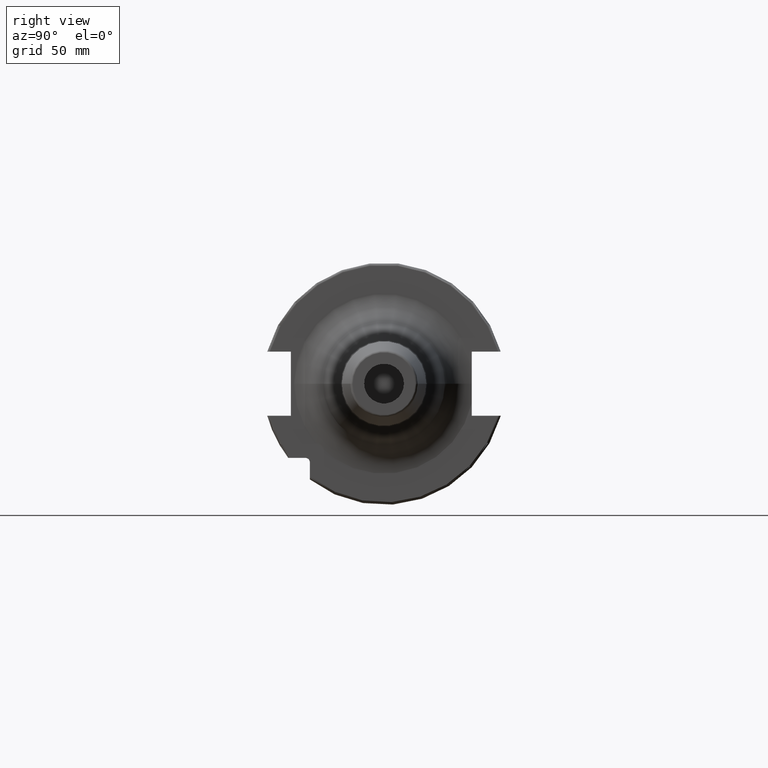
[diagram: clean part render]
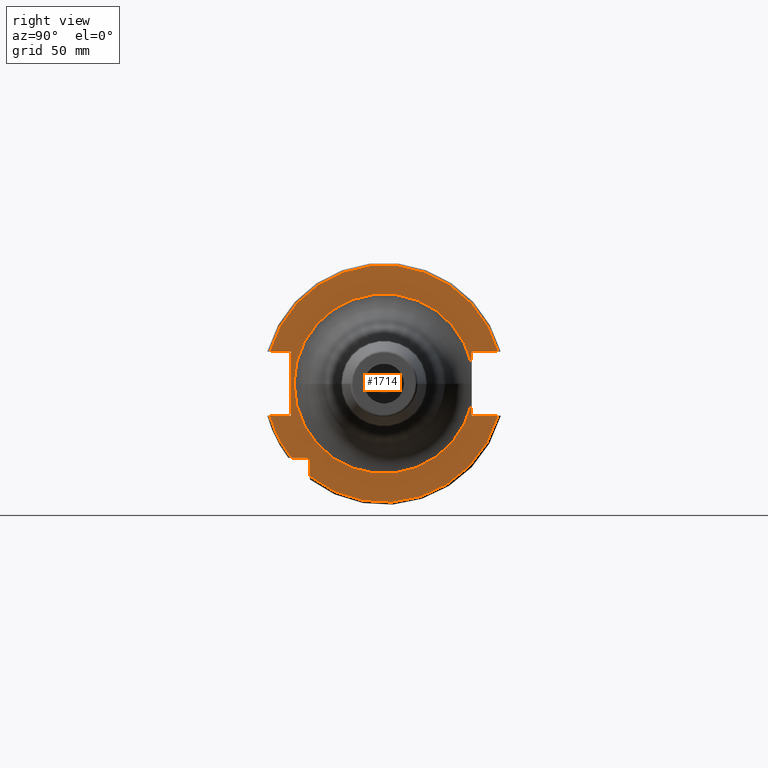
[diagram: same view with one face highlighted and labeled with its STEP entity id]
A machine part, right view. The second image highlights one B-rep face of the part: STEP entity #1714.
In plain terms, the highlighted planar face has unit normal (1, 0, 0).
Its self-contained STEP definition (entity closure, byte-faithful):
#126=CARTESIAN_POINT('',(1.905E1,0.E0,0.E0));
#127=DIRECTION('',(1.E0,0.E0,0.E0));
#128=DIRECTION('',(0.E0,9.758050284671E-1,2.186425082602E-1));
#129=AXIS2_PLACEMENT_3D('',#126,#127,#128);
#131=CARTESIAN_POINT('',(1.905E1,0.E0,0.E0));
#132=DIRECTION('',(1.E0,0.E0,0.E0));
#133=DIRECTION('',(0.E0,-1.E0,0.E0));
#134=AXIS2_PLACEMENT_3D('',#131,#132,#133);
#136=DIRECTION('',(0.E0,8.449225965502E-6,-9.999999999643E-1));
#137=VECTOR('',#136,4.990063308642E0);
#138=CARTESIAN_POINT('',(1.905E1,3.529995783783E1,-7.909936691536E0));
#139=LINE('',#138,#137);
#140=DIRECTION('',(0.E0,-1.E0,0.E0));
#141=VECTOR('',#140,1.066149373389E1);
#142=CARTESIAN_POINT('',(1.905E1,4.596149373389E1,-1.29E1));
#143=LINE('',#142,#141);
#144=DIRECTION('',(0.E0,0.E0,1.E0));
#145=VECTOR('',#144,5.653810627237E0);
#146=CARTESIAN_POINT('',(1.905E1,-2.985E1,-3.725381062724E1));
#147=LINE('',#146,#145);
#148=DIRECTION('',(0.E0,-1.E0,0.E0));
#149=VECTOR('',#148,5.653810627237E0);
#150=CARTESIAN_POINT('',(1.905E1,-3.16E1,-2.985E1));
#151=LINE('',#150,#149);
#152=DIRECTION('',(0.E0,1.E0,0.E0));
#153=VECTOR('',#152,8.461493733886E0);
#154=CARTESIAN_POINT('',(1.905E1,-4.596149373389E1,-1.29E1));
#155=LINE('',#154,#153);
#156=DIRECTION('',(0.E0,0.E0,1.E0));
#157=VECTOR('',#156,2.58E1);
#158=CARTESIAN_POINT('',(1.905E1,-3.75E1,-1.29E1));
#159=LINE('',#158,#157);
#160=DIRECTION('',(0.E0,1.E0,0.E0));
#161=VECTOR('',#160,8.461493733886E0);
#162=CARTESIAN_POINT('',(1.905E1,-4.596149373389E1,1.29E1));
#163=LINE('',#162,#161);
#164=DIRECTION('',(0.E0,-1.E0,0.E0));
#165=VECTOR('',#164,1.066149373389E1);
#166=CARTESIAN_POINT('',(1.905E1,4.596149373389E1,1.29E1));
#167=LINE('',#166,#165);
#168=DIRECTION('',(0.E0,-8.687090599570E-6,-9.999999999623E-1));
#169=VECTOR('',#168,4.989954981676E0);
#170=CARTESIAN_POINT('',(1.905E1,3.53E1,1.29E1));
#171=LINE('',#170,#169);
#609=CARTESIAN_POINT('',(1.905E1,-3.16E1,-3.16E1));
#610=DIRECTION('',(-1.E0,0.E0,0.E0));
#611=DIRECTION('',(0.E0,0.E0,1.E0));
#612=AXIS2_PLACEMENT_3D('',#609,#610,#611);
#644=CARTESIAN_POINT('',(1.905E1,0.E0,0.E0));
#645=DIRECTION('',(-1.E0,0.E0,0.E0));
#646=DIRECTION('',(0.E0,9.627964123359E-1,-2.702278083268E-1));
#647=AXIS2_PLACEMENT_3D('',#644,#645,#646);
#660=CARTESIAN_POINT('',(1.905E1,0.E0,0.E0));
#661=DIRECTION('',(-1.E0,0.E0,0.E0));
#662=DIRECTION('',(0.E0,-7.803888060170E-1,-6.252945797329E-1));
#663=AXIS2_PLACEMENT_3D('',#660,#661,#662);
#674=CARTESIAN_POINT('',(1.905E1,-3.725381062724E1,-2.985E1));
#1022=CARTESIAN_POINT('',(1.905E1,0.E0,0.E0));
#1023=DIRECTION('',(1.E0,0.E0,0.E0));
#1024=DIRECTION('',(0.E0,9.627964123359E-1,2.702278083268E-1));
#1025=AXIS2_PLACEMENT_3D('',#1022,#1023,#1024);
#1366=CARTESIAN_POINT('',(1.905E1,4.596149373389E1,1.29E1));
#1367=CARTESIAN_POINT('',(1.905E1,3.53E1,1.29E1));
#1368=VERTEX_POINT('',#1366);
#1369=VERTEX_POINT('',#1367);
#1370=CARTESIAN_POINT('',(1.905E1,4.596149373389E1,-1.29E1));
#1371=CARTESIAN_POINT('',(1.905E1,3.53E1,-1.29E1));
#1372=VERTEX_POINT('',#1370);
#1373=VERTEX_POINT('',#1371);
#1374=CARTESIAN_POINT('',(1.905E1,-4.596149373389E1,-1.29E1));
#1375=CARTESIAN_POINT('',(1.905E1,-3.75E1,-1.29E1));
#1376=VERTEX_POINT('',#1374);
#1377=VERTEX_POINT('',#1375);
#1378=CARTESIAN_POINT('',(1.905E1,-3.75E1,1.29E1));
#1379=VERTEX_POINT('',#1378);
#1380=CARTESIAN_POINT('',(1.905E1,-4.596149373389E1,1.29E1));
#1381=VERTEX_POINT('',#1380);
#1435=CARTESIAN_POINT('',(1.905E1,-2.985E1,-3.725381062724E1));
#1436=VERTEX_POINT('',#1435);
#1443=CARTESIAN_POINT('',(1.905E1,-3.16E1,-2.985E1));
#1444=CARTESIAN_POINT('',(1.905E1,-2.985E1,-3.16E1));
#1445=VERTEX_POINT('',#1443);
#1446=VERTEX_POINT('',#1444);
#1468=VERTEX_POINT('',#674);
#1498=CARTESIAN_POINT('',(1.905E1,3.530012869822E1,7.909478282369E0));
#1499=CARTESIAN_POINT('',(1.905E1,-3.617539125994E1,-1.421085471520E-13));
#1500=VERTEX_POINT('',#1498);
#1501=VERTEX_POINT('',#1499);
#1502=CARTESIAN_POINT('',(1.905E1,3.530019464539E1,-7.909183953344E0));
#1503=VERTEX_POINT('',#1502);
#1679=CARTESIAN_POINT('',(1.905E1,0.E0,0.E0));
#1680=DIRECTION('',(1.E0,0.E0,0.E0));
#1681=DIRECTION('',(0.E0,-1.E0,0.E0));
#1682=AXIS2_PLACEMENT_3D('',#1679,#1680,#1681);
#1683=PLANE('',#1682);
#1685=ORIENTED_EDGE('',*,*,#1684,.T.);
#1687=ORIENTED_EDGE('',*,*,#1686,.T.);
#1688=ORIENTED_EDGE('',*,*,#1657,.T.);
#1690=ORIENTED_EDGE('',*,*,#1689,.F.);
#1692=ORIENTED_EDGE('',*,*,#1691,.T.);
#1694=ORIENTED_EDGE('',*,*,#1693,.T.);
#1696=ORIENTED_EDGE('',*,*,#1695,.F.);
#1698=ORIENTED_EDGE('',*,*,#1697,.T.);
#1700=ORIENTED_EDGE('',*,*,#1699,.T.);
#1702=ORIENTED_EDGE('',*,*,#1701,.T.);
#1704=ORIENTED_EDGE('',*,*,#1703,.T.);
#1706=ORIENTED_EDGE('',*,*,#1705,.F.);
#1708=ORIENTED_EDGE('',*,*,#1707,.F.);
#1710=ORIENTED_EDGE('',*,*,#1709,.T.);
#1711=ORIENTED_EDGE('',*,*,#1663,.T.);
#1712=EDGE_LOOP('',(#1685,#1687,#1688,#1690,#1692,#1694,#1696,#1698,#1700,#1702,
#1704,#1706,#1708,#1710,#1711));
#1713=FACE_OUTER_BOUND('',#1712,.F.);
#1714=ADVANCED_FACE('',(#1713),#1683,.T.);
#130=CIRCLE('',#129,3.617539125994E1);
#135=CIRCLE('',#134,3.617539125994E1);
#613=CIRCLE('',#612,1.75E0);
#648=CIRCLE('',#647,4.77375E1);
#664=CIRCLE('',#663,4.77375E1);
#1026=CIRCLE('',#1025,4.77375E1);
#1657=EDGE_CURVE('',#1503,#1373,#139,.T.);
#1663=EDGE_CURVE('',#1369,#1500,#171,.T.);
#1684=EDGE_CURVE('',#1500,#1501,#130,.T.);
#1686=EDGE_CURVE('',#1501,#1503,#135,.T.);
#1689=EDGE_CURVE('',#1372,#1373,#143,.T.);
#1691=EDGE_CURVE('',#1372,#1436,#648,.T.);
#1693=EDGE_CURVE('',#1436,#1446,#147,.T.);
#1695=EDGE_CURVE('',#1445,#1446,#613,.T.);
#1697=EDGE_CURVE('',#1445,#1468,#151,.T.);
#1699=EDGE_CURVE('',#1468,#1376,#664,.T.);
#1701=EDGE_CURVE('',#1376,#1377,#155,.T.);
#1703=EDGE_CURVE('',#1377,#1379,#159,.T.);
#1705=EDGE_CURVE('',#1381,#1379,#163,.T.);
#1707=EDGE_CURVE('',#1368,#1381,#1026,.T.);
#1709=EDGE_CURVE('',#1368,#1369,#167,.T.);